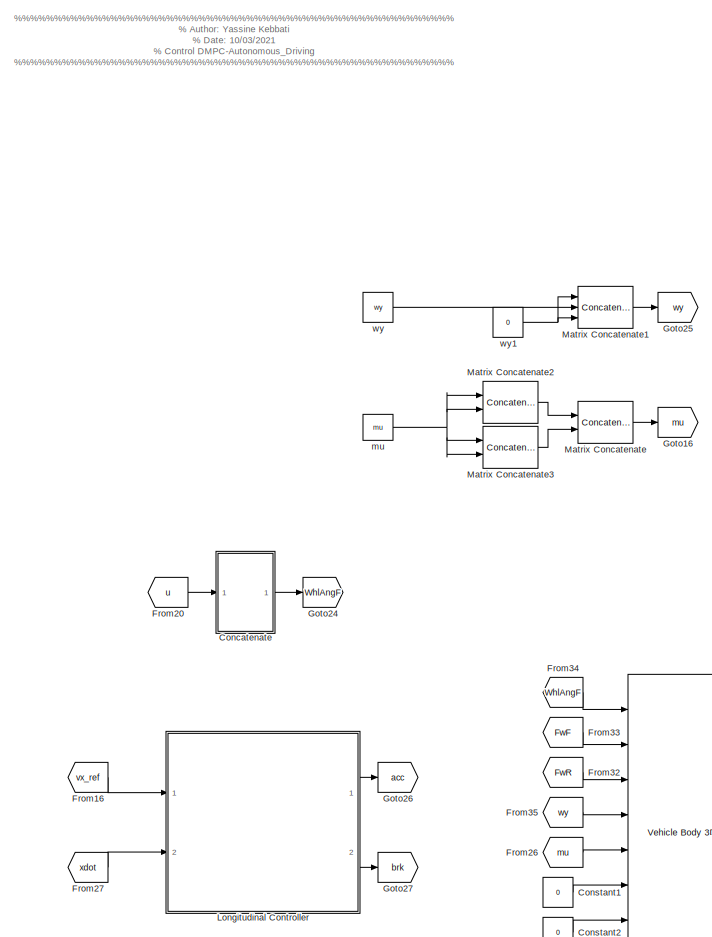
[diagram: root canvas - part 1/4, center side, full height]
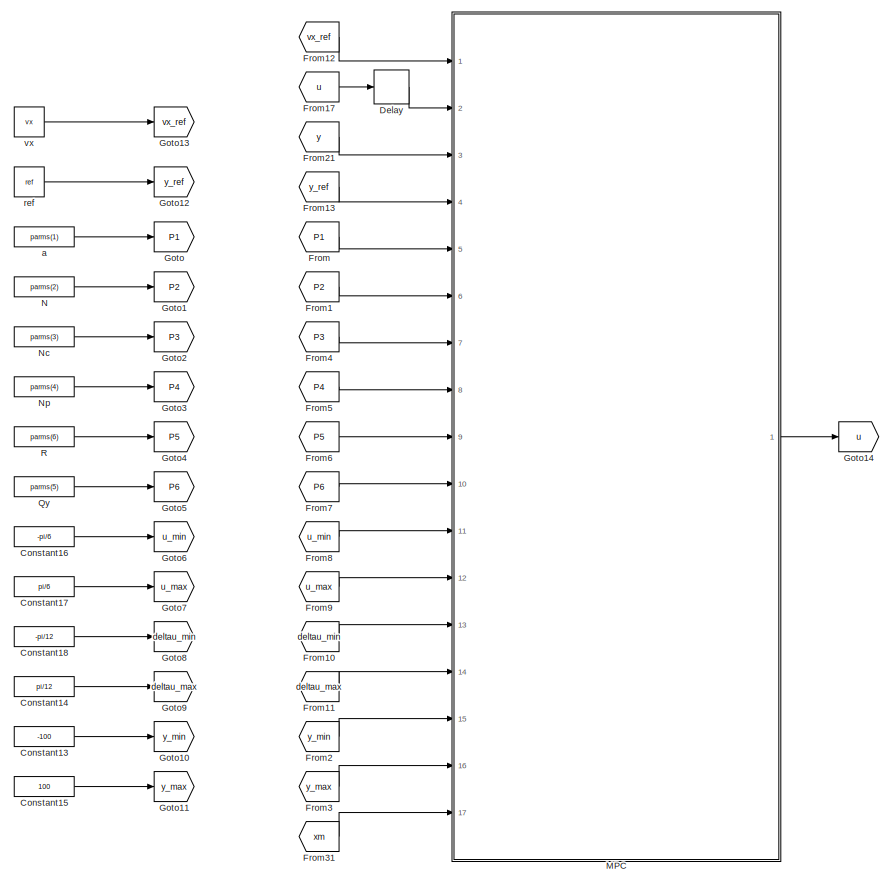
[diagram: root canvas - part 2/4, left side, full height]
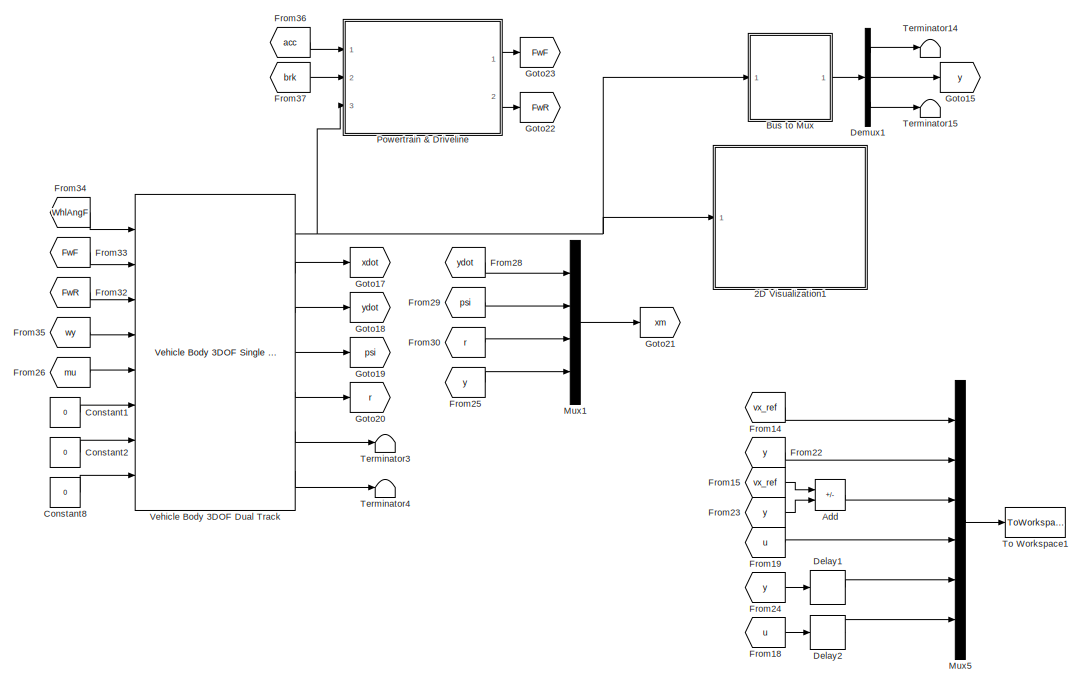
[diagram: root canvas - part 3/4, bottom center region]
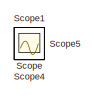
[diagram: root canvas - part 4/4, middle right region]
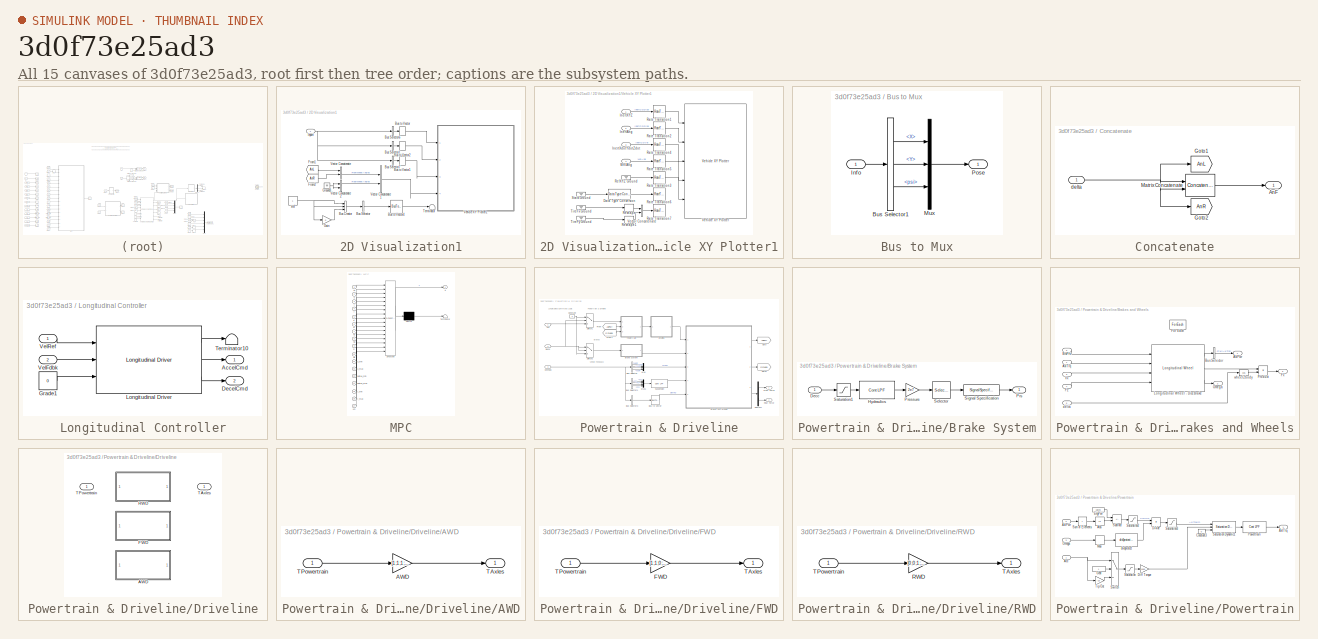
[diagram: thumbnail index - all 15 canvases of the model, root first then tree order]
MODEL slx_3d0f73e25ad3
KIND model
CONFIG AbsTol = auto
CONFIG EnableMultiTasking = off
CONFIG FixedStep = 0.01
CONFIG MaxStep = auto
CONFIG MinStep = auto
CONFIG PreLoadFcn = setUpPurePursuitCurveHighVel
CONFIG RelTol = 1e-3
CONFIG SampleTimeConstraint = Unconstrained
CONFIG Solver = VariableStepAuto
CONFIG SolverName = VariableStepAuto
CONFIG StartTime = 0.0
CONFIG StopTime = 6
WORKSPACE source: MAT-file member
WORKSPACE firstWarning = 0
BLOCK [SubSystem] 2D Visualization1
  Ports = [1]
BLOCK [BusCreator] 2D Visualization1/Bus Creator
  DisplayOption = bar
  InheritFromInputs = on
  Inputs = 3
  Ports = [3, 1]
BLOCK [BusSelector] 2D Visualization1/Bus Selector
  OutputAsBus = on
  OutputSignals = signal1,signal2,signal3
  Ports = [1, 1]
BLOCK [BusSelector] 2D Visualization1/Bus Selector1
  OutputAsBus = on
  OutputSignals = InertFrm.Cg.Ang.phi,InertFrm.Cg.Ang.theta,InertFrm.Cg.Ang.psi
  Ports = [1, 1]
BLOCK [BusSelector] 2D Visualization1/Bus Selector6
  OutputAsBus = on
  OutputSignals = InertFrm.Geom.Disp.X,InertFrm.Geom.Disp.Y,InertFrm.Geom.Disp.Z
  Ports = [1, 1]
BLOCK [BusSelector] 2D Visualization1/Bus Selector7
  OutputAsBus = on
  OutputSignals = InertFrm.Geom.Vel.Xdot,InertFrm.Geom.Vel.Ydot,InertFrm.Geom.Vel.Zdot
  Ports = [1, 1]
BLOCK [BusToVector] 2D Visualization1/Bus to Vector
BLOCK [BusToVector] 2D Visualization1/Bus to Vector1
BLOCK [BusToVector] 2D Visualization1/Bus to Vector2
BLOCK [BusToVector] 2D Visualization1/Bus to Vector4
BLOCK [From] 2D Visualization1/From1
  GotoTag = AnL
  TagVisibility = global
BLOCK [From] 2D Visualization1/From2
  GotoTag = AnR
  TagVisibility = global
BLOCK [Gain] 2D Visualization1/Gain
  Gain = 0
BLOCK [Ground] 2D Visualization1/Ground3
BLOCK [Inport] 2D Visualization1/Inport
BLOCK [Terminator] 2D Visualization1/Terminator
BLOCK [Concatenate] 2D Visualization1/Vector Concatenate
  Ports = [2, 1]
BLOCK [Concatenate] 2D Visualization1/Vector Concatenate1
  Ports = [2, 1]
BLOCK [Concatenate] 2D Visualization1/Vector Concatenate2
  Ports = [2, 1]
BLOCK [SubSystem] 2D Visualization1/Vehicle XY Plotter1
  Ports = [4]
BLOCK [DataTypeConversion] 2D Visualization1/Vehicle XY Plotter1/Data Type Conversion
  OutDataTypeStr = double
  RndMeth = Floor
  SaturateOnIntegerOverflow = off
BLOCK [Inport] 2D Visualization1/Vehicle XY Plotter1/InertAng
  Port = 2
BLOCK [Inport] 2D Visualization1/Vehicle XY Plotter1/InertXYZ
BLOCK [Inport] 2D Visualization1/Vehicle XY Plotter1/InertXdotYdotZdot
  Port = 3
BLOCK [RateTransition] 2D Visualization1/Vehicle XY Plotter1/Rate Transition1
  Deterministic = off
  OutPortSampleTime = pltDT
BLOCK [RateTransition] 2D Visualization1/Vehicle XY Plotter1/Rate Transition2
  Deterministic = off
  OutPortSampleTime = pltDT
BLOCK [RateTransition] 2D Visualization1/Vehicle XY Plotter1/Rate Transition3
  Deterministic = off
  OutPortSampleTime = pltDT
BLOCK [RateTransition] 2D Visualization1/Vehicle XY Plotter1/Rate Transition4
  Deterministic = off
  OutPortSampleTime = pltDT
BLOCK [RateTransition] 2D Visualization1/Vehicle XY Plotter1/Rate Transition5
  Deterministic = off
  OutPortSampleTime = pltDT
BLOCK [RateTransition] 2D Visualization1/Vehicle XY Plotter1/Rate Transition6
  Deterministic = off
  OutPortSampleTime = pltDT
BLOCK [RateTransition] 2D Visualization1/Vehicle XY Plotter1/Rate Transition7
  Deterministic = off
  OutPortSampleTime = pltDT
BLOCK [Ground] 2D Visualization1/Vehicle XY Plotter1/RefXYZ Ground
BLOCK [Reshape] 2D Visualization1/Vehicle XY Plotter1/Reshape
  OutputDimensionality = Row vector (2-D)
  Ports = [1, 1]
BLOCK [Reshape] 2D Visualization1/Vehicle XY Plotter1/Reshape1
  OutputDimensionality = Row vector (2-D)
  Ports = [1, 1]
BLOCK [Ground] 2D Visualization1/Vehicle XY Plotter1/Stats Ground
BLOCK [Ground] 2D Visualization1/Vehicle XY Plotter1/TireFx Ground
BLOCK [Ground] 2D Visualization1/Vehicle XY Plotter1/TireFy Ground
BLOCK [Concatenate] 2D Visualization1/Vehicle XY Plotter1/Vector Concatenate
  Mode = Multidimensional array
  Ports = [2, 1]
BLOCK [Reference] 2D Visualization1/Vehicle XY Plotter1/Vehicle XY Plotter  REF=vehdynlibviscommon/Vehicle XY Plotter
  Ports = [5]
  SourceBlock = vehdynlibviscommon/Vehicle XY Plotter
  SourceType = Vehicle XY Plotter
BLOCK [Inport] 2D Visualization1/Vehicle XY Plotter1/WhlAng
  Port = 4
BLOCK [Constant] 2D Visualization1/xref
BLOCK [Sum] Add
  IconShape = rectangular
  Inputs = +-
  Ports = [2, 1]
BLOCK [SubSystem] Bus to Mux
  Ports = [1, 1]
BLOCK [BusSelector] Bus to Mux/Bus Selector1
  OutputSignals = InertFrm.Cg.Disp.X,InertFrm.Cg.Disp.Y,InertFrm.Cg.Ang.psi
  Ports = [1, 3]
BLOCK [Inport] Bus to Mux/Info
BLOCK [Mux] Bus to Mux/Mux
  DisplayOption = bar
  Inputs = 3
  Ports = [3, 1]
BLOCK [Outport] Bus to Mux/Pose
BLOCK [SubSystem] Concatenate
  Ports = [1, 1]
BLOCK [Outport] Concatenate/AnF
  VectorParamsAs1DForOutWhenUnconnected = off
BLOCK [Goto] Concatenate/Goto1
  GotoTag = AnL
  TagVisibility = global
BLOCK [Goto] Concatenate/Goto2
  GotoTag = AnR
  TagVisibility = global
BLOCK [Concatenate] Concatenate/Matrix Concatenate
  Ports = [2, 1]
BLOCK [Inport] Concatenate/delta
BLOCK [Constant] Constant1
  Value = 0
BLOCK [Constant] Constant13
  Value = -100
BLOCK [Constant] Constant14
  Value = pi/12
BLOCK [Constant] Constant15
  Value = 100
BLOCK [Constant] Constant16
  Value = -pi/6
BLOCK [Constant] Constant17
  Value = pi/6
BLOCK [Constant] Constant18
  Value = -pi/12
BLOCK [Constant] Constant2
  Value = 0
BLOCK [Constant] Constant8
  Value = 0
BLOCK [Delay] Delay
  DelayLength = 1
  InputPortMap = u0
  Ports = [1, 1]
BLOCK [Delay] Delay1
  DelayLength = 1
  InputPortMap = u0
  Ports = [1, 1]
BLOCK [Delay] Delay2
  DelayLength = 1
  InputPortMap = u0
  Ports = [1, 1]
BLOCK [Demux] Demux1
  Outputs = 3
  Ports = [1, 3]
BLOCK [From] From
  CopyFcn = Lib_CopyFcn(gcb);
  Description = FromInternal
  GotoTag = P1
  PreDeleteFcn = Lib_PreDeleteFcn(gcb);
  Tag = Controls_Lib
  UserDataPersistent = on
BLOCK [From] From1
  CopyFcn = Lib_CopyFcn(gcb);
  Description = FromInternal
  GotoTag = P2
  PreDeleteFcn = Lib_PreDeleteFcn(gcb);
  Tag = Controls_Lib
  UserDataPersistent = on
BLOCK [From] From10
  CopyFcn = Lib_CopyFcn(gcb);
  Description = FromInternal
  GotoTag = deltau_min
  PreDeleteFcn = Lib_PreDeleteFcn(gcb);
  Tag = Controls_Lib
  UserDataPersistent = on
BLOCK [From] From11
  CopyFcn = Lib_CopyFcn(gcb);
  Description = FromInternal
  GotoTag = deltau_max
  PreDeleteFcn = Lib_PreDeleteFcn(gcb);
  Tag = Controls_Lib
  UserDataPersistent = on
BLOCK [From] From12
  CopyFcn = Lib_CopyFcn(gcb);
  Description = FromInternal
  GotoTag = vx_ref
  PreDeleteFcn = Lib_PreDeleteFcn(gcb);
  Tag = Controls_Lib
  UserDataPersistent = on
BLOCK [From] From13
  CopyFcn = Lib_CopyFcn(gcb);
  Description = FromInternal
  GotoTag = y_ref
  PreDeleteFcn = Lib_PreDeleteFcn(gcb);
  Tag = Controls_Lib
  UserDataPersistent = on
BLOCK [From] From14
  CopyFcn = Lib_CopyFcn(gcb);
  Description = FromInternal
  GotoTag = vx_ref
  PreDeleteFcn = Lib_PreDeleteFcn(gcb);
  Tag = Controls_Lib
  UserDataPersistent = on
BLOCK [From] From15
  CopyFcn = Lib_CopyFcn(gcb);
  Description = FromInternal
  GotoTag = vx_ref
  PreDeleteFcn = Lib_PreDeleteFcn(gcb);
  Tag = Controls_Lib
  UserDataPersistent = on
BLOCK [From] From16
  CopyFcn = Lib_CopyFcn(gcb);
  Description = FromInternal
  GotoTag = vx_ref
  PreDeleteFcn = Lib_PreDeleteFcn(gcb);
  Tag = Controls_Lib
  UserDataPersistent = on
BLOCK [From] From17
  CopyFcn = Lib_CopyFcn(gcb);
  Description = FromInternal
  GotoTag = u
  PreDeleteFcn = Lib_PreDeleteFcn(gcb);
  Tag = Controls_Lib
  UserDataPersistent = on
BLOCK [From] From18
  CopyFcn = Lib_CopyFcn(gcb);
  Description = FromInternal
  GotoTag = u
  PreDeleteFcn = Lib_PreDeleteFcn(gcb);
  Tag = Controls_Lib
  UserDataPersistent = on
BLOCK [From] From19
  CopyFcn = Lib_CopyFcn(gcb);
  Description = FromInternal
  GotoTag = u
  PreDeleteFcn = Lib_PreDeleteFcn(gcb);
  Tag = Controls_Lib
  UserDataPersistent = on
BLOCK [From] From2
  CopyFcn = Lib_CopyFcn(gcb);
  Description = FromInternal
  GotoTag = y_min
  PreDeleteFcn = Lib_PreDeleteFcn(gcb);
  Tag = Controls_Lib
  UserDataPersistent = on
BLOCK [From] From20
  CopyFcn = Lib_CopyFcn(gcb);
  Description = FromInternal
  GotoTag = u
  PreDeleteFcn = Lib_PreDeleteFcn(gcb);
  Tag = Controls_Lib
  UserDataPersistent = on
BLOCK [From] From21
  CopyFcn = Lib_CopyFcn(gcb);
  Description = FromInternal
  GotoTag = y
  PreDeleteFcn = Lib_PreDeleteFcn(gcb);
  Tag = Controls_Lib
  UserDataPersistent = on
BLOCK [From] From22
  CopyFcn = Lib_CopyFcn(gcb);
  Description = FromInternal
  GotoTag = y
  PreDeleteFcn = Lib_PreDeleteFcn(gcb);
  Tag = Controls_Lib
  UserDataPersistent = on
BLOCK [From] From23
  CopyFcn = Lib_CopyFcn(gcb);
  Description = FromInternal
  GotoTag = y
  PreDeleteFcn = Lib_PreDeleteFcn(gcb);
  Tag = Controls_Lib
  UserDataPersistent = on
BLOCK [From] From24
  CopyFcn = Lib_CopyFcn(gcb);
  Description = FromInternal
  GotoTag = y
  PreDeleteFcn = Lib_PreDeleteFcn(gcb);
  Tag = Controls_Lib
  UserDataPersistent = on
BLOCK [From] From25
  CopyFcn = Lib_CopyFcn(gcb);
  Description = FromInternal
  GotoTag = y
  PreDeleteFcn = Lib_PreDeleteFcn(gcb);
  Tag = Controls_Lib
  UserDataPersistent = on
BLOCK [From] From26
  CopyFcn = Lib_CopyFcn(gcb);
  Description = FromInternal
  GotoTag = mu
  PreDeleteFcn = Lib_PreDeleteFcn(gcb);
  Tag = Controls_Lib
  UserDataPersistent = on
BLOCK [From] From27
  CopyFcn = Lib_CopyFcn(gcb);
  Description = FromInternal
  GotoTag = xdot
  PreDeleteFcn = Lib_PreDeleteFcn(gcb);
  Tag = Controls_Lib
  UserDataPersistent = on
BLOCK [From] From28
  CopyFcn = Lib_CopyFcn(gcb);
  Description = FromInternal
  GotoTag = ydot
  PreDeleteFcn = Lib_PreDeleteFcn(gcb);
  Tag = Controls_Lib
  UserDataPersistent = on
BLOCK [From] From29
  CopyFcn = Lib_CopyFcn(gcb);
  Description = FromInternal
  GotoTag = psi
  PreDeleteFcn = Lib_PreDeleteFcn(gcb);
  Tag = Controls_Lib
  UserDataPersistent = on
BLOCK [From] From3
  CopyFcn = Lib_CopyFcn(gcb);
  Description = FromInternal
  GotoTag = y_max
  PreDeleteFcn = Lib_PreDeleteFcn(gcb);
  Tag = Controls_Lib
  UserDataPersistent = on
BLOCK [From] From30
  CopyFcn = Lib_CopyFcn(gcb);
  Description = FromInternal
  GotoTag = r
  PreDeleteFcn = Lib_PreDeleteFcn(gcb);
  Tag = Controls_Lib
  UserDataPersistent = on
BLOCK [From] From31
  CopyFcn = Lib_CopyFcn(gcb);
  Description = FromInternal
  GotoTag = xm
  PreDeleteFcn = Lib_PreDeleteFcn(gcb);
  Tag = Controls_Lib
  UserDataPersistent = on
BLOCK [From] From32
  CopyFcn = Lib_CopyFcn(gcb);
  Description = FromInternal
  GotoTag = FwR
  PreDeleteFcn = Lib_PreDeleteFcn(gcb);
  Tag = Controls_Lib
  UserDataPersistent = on
BLOCK [From] From33
  CopyFcn = Lib_CopyFcn(gcb);
  Description = FromInternal
  GotoTag = FwF
  PreDeleteFcn = Lib_PreDeleteFcn(gcb);
  Tag = Controls_Lib
  UserDataPersistent = on
BLOCK [From] From34
  CopyFcn = Lib_CopyFcn(gcb);
  Description = FromInternal
  GotoTag = WhlAngF
  PreDeleteFcn = Lib_PreDeleteFcn(gcb);
  Tag = Controls_Lib
  UserDataPersistent = on
BLOCK [From] From35
  CopyFcn = Lib_CopyFcn(gcb);
  Description = FromInternal
  GotoTag = wy
  PreDeleteFcn = Lib_PreDeleteFcn(gcb);
  Tag = Controls_Lib
  UserDataPersistent = on
BLOCK [From] From36
  CopyFcn = Lib_CopyFcn(gcb);
  Description = FromInternal
  GotoTag = acc
  PreDeleteFcn = Lib_PreDeleteFcn(gcb);
  Tag = Controls_Lib
  UserDataPersistent = on
BLOCK [From] From37
  CopyFcn = Lib_CopyFcn(gcb);
  Description = FromInternal
  GotoTag = brk
  PreDeleteFcn = Lib_PreDeleteFcn(gcb);
  Tag = Controls_Lib
  UserDataPersistent = on
BLOCK [From] From4
  CopyFcn = Lib_CopyFcn(gcb);
  Description = FromInternal
  GotoTag = P3
  PreDeleteFcn = Lib_PreDeleteFcn(gcb);
  Tag = Controls_Lib
  UserDataPersistent = on
BLOCK [From] From5
  CopyFcn = Lib_CopyFcn(gcb);
  Description = FromInternal
  GotoTag = P4
  PreDeleteFcn = Lib_PreDeleteFcn(gcb);
  Tag = Controls_Lib
  UserDataPersistent = on
BLOCK [From] From6
  CopyFcn = Lib_CopyFcn(gcb);
  Description = FromInternal
  GotoTag = P5
  PreDeleteFcn = Lib_PreDeleteFcn(gcb);
  Tag = Controls_Lib
  UserDataPersistent = on
BLOCK [From] From7
  CopyFcn = Lib_CopyFcn(gcb);
  Description = FromInternal
  GotoTag = P6
  PreDeleteFcn = Lib_PreDeleteFcn(gcb);
  Tag = Controls_Lib
  UserDataPersistent = on
BLOCK [From] From8
  CopyFcn = Lib_CopyFcn(gcb);
  Description = FromInternal
  GotoTag = u_min
  PreDeleteFcn = Lib_PreDeleteFcn(gcb);
  Tag = Controls_Lib
  UserDataPersistent = on
BLOCK [From] From9
  CopyFcn = Lib_CopyFcn(gcb);
  Description = FromInternal
  GotoTag = u_max
  PreDeleteFcn = Lib_PreDeleteFcn(gcb);
  Tag = Controls_Lib
  UserDataPersistent = on
BLOCK [Goto] Goto
  GotoTag = P1
BLOCK [Goto] Goto1
  GotoTag = P2
BLOCK [Goto] Goto10
  GotoTag = y_min
BLOCK [Goto] Goto11
  GotoTag = y_max
BLOCK [Goto] Goto12
  GotoTag = y_ref
BLOCK [Goto] Goto13
  GotoTag = vx_ref
BLOCK [Goto] Goto14
  GotoTag = u
BLOCK [Goto] Goto15
  GotoTag = y
BLOCK [Goto] Goto16
  GotoTag = mu
BLOCK [Goto] Goto17
  GotoTag = xdot
BLOCK [Goto] Goto18
  GotoTag = ydot
BLOCK [Goto] Goto19
  GotoTag = psi
BLOCK [Goto] Goto2
  GotoTag = P3
BLOCK [Goto] Goto20
  GotoTag = r
BLOCK [Goto] Goto21
  GotoTag = xm
BLOCK [Goto] Goto22
  GotoTag = FwR
BLOCK [Goto] Goto23
  GotoTag = FwF
BLOCK [Goto] Goto24
  CopyFcn = Lib_CopyFcn(gcb);
  Description = GotoInternal
  GotoTag = WhlAngF
  PreDeleteFcn = Lib_PreDeleteFcn(gcb);
  Tag = Controls_Lib
  UserDataPersistent = on
BLOCK [Goto] Goto25
  CopyFcn = Lib_CopyFcn(gcb);
  Description = GotoInternal
  GotoTag = wy
  PreDeleteFcn = Lib_PreDeleteFcn(gcb);
  Tag = Controls_Lib
  UserDataPersistent = on
BLOCK [Goto] Goto26
  CopyFcn = Lib_CopyFcn(gcb);
  Description = GotoInternal
  GotoTag = acc
  PreDeleteFcn = Lib_PreDeleteFcn(gcb);
  Tag = Controls_Lib
  UserDataPersistent = on
BLOCK [Goto] Goto27
  CopyFcn = Lib_CopyFcn(gcb);
  Description = GotoInternal
  GotoTag = brk
  PreDeleteFcn = Lib_PreDeleteFcn(gcb);
  Tag = Controls_Lib
  UserDataPersistent = on
BLOCK [Goto] Goto3
  GotoTag = P4
BLOCK [Goto] Goto4
  GotoTag = P5
BLOCK [Goto] Goto5
  GotoTag = P6
BLOCK [Goto] Goto6
  GotoTag = u_min
BLOCK [Goto] Goto7
  GotoTag = u_max
BLOCK [Goto] Goto8
  GotoTag = deltau_min
BLOCK [Goto] Goto9
  GotoTag = deltau_max
BLOCK [SubSystem] Longitudinal Controller
  Ports = [2, 2]
BLOCK [Outport] Longitudinal Controller/AccelCmd
BLOCK [Outport] Longitudinal Controller/DecelCmd
  Port = 2
BLOCK [Constant] Longitudinal Controller/Grade1
  Value = 0
BLOCK [Reference] Longitudinal Controller/Longitudinal Driver  REF=autolibshared/Longitudinal Driver
  Ports = [3, 3]
  SourceBlock = autolibshared/Longitudinal Driver
  SourceType = Longitudinal Driver
BLOCK [Terminator] Longitudinal Controller/Terminator10
BLOCK [Inport] Longitudinal Controller/VelFdbk
  Port = 2
BLOCK [Inport] Longitudinal Controller/VelRef
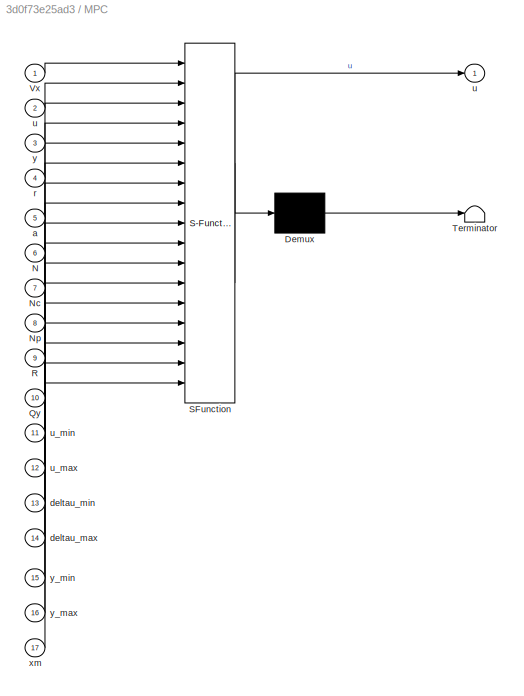
BLOCK [SubSystem] MPC
  ErrorFcn = Stateflow.Translate.translate
  PermitHierarchicalResolution = ExplicitOnly
  Ports = [17, 1]
  SFBlockType = MATLAB Function
  TreatAsAtomicUnit = on
BLOCK [Demux] MPC/ Demux 
  Outputs = 1
  Ports = [1, 1]
BLOCK [S-Function] MPC/ SFunction 
  EnableBusSupport = on
  FunctionName = sf_sfun
  PortCounts = [17 2]
  Ports = [17, 2]
  SFcnIsStateOwnerBlock = off
  SFunctionDeploymentMode = off
  Tag = Stateflow S-Function MPC1 2
BLOCK [Terminator] MPC/ Terminator 
BLOCK [Inport] MPC/N
  Port = 6
BLOCK [Inport] MPC/Nc
  Port = 7
BLOCK [Inport] MPC/Np
  Port = 8
BLOCK [Inport] MPC/Qy
  Port = 10
BLOCK [Inport] MPC/R
  Port = 9
BLOCK [Inport] MPC/Vx
BLOCK [Inport] MPC/a
  Port = 5
BLOCK [Inport] MPC/deltau_max
  Port = 14
BLOCK [Inport] MPC/deltau_min
  Port = 13
BLOCK [Inport] MPC/r
  Port = 4
BLOCK [Outport] MPC/u
BLOCK [Inport] MPC/u 
  Port = 2
BLOCK [Inport] MPC/u_max
  Port = 12
BLOCK [Inport] MPC/u_min
  Port = 11
BLOCK [Inport] MPC/xm
  Port = 17
BLOCK [Inport] MPC/y
  Port = 3
BLOCK [Inport] MPC/y_max
  Port = 16
BLOCK [Inport] MPC/y_min
  Port = 15
BLOCK [Concatenate] Matrix Concatenate
  ConcatenateDimension = 2
  Mode = Multidimensional array
  Ports = [2, 1]
BLOCK [Concatenate] Matrix Concatenate1
  ConcatenateDimension = 2
  Mode = Multidimensional array
  NumInputs = 3
  Ports = [3, 1]
BLOCK [Concatenate] Matrix Concatenate2
  ConcatenateDimension = 2
  Ports = [2, 1]
BLOCK [Concatenate] Matrix Concatenate3
  ConcatenateDimension = 2
  Ports = [2, 1]
BLOCK [Mux] Mux1
  DisplayOption = bar
  Ports = [4, 1]
BLOCK [Mux] Mux5
  DisplayOption = bar
  Inputs = 6
  Ports = [6, 1]
BLOCK [Constant] N
  Value = parms(2)
BLOCK [Constant] Nc
  Value = parms(3)
BLOCK [Constant] Np
  Value = parms(4)
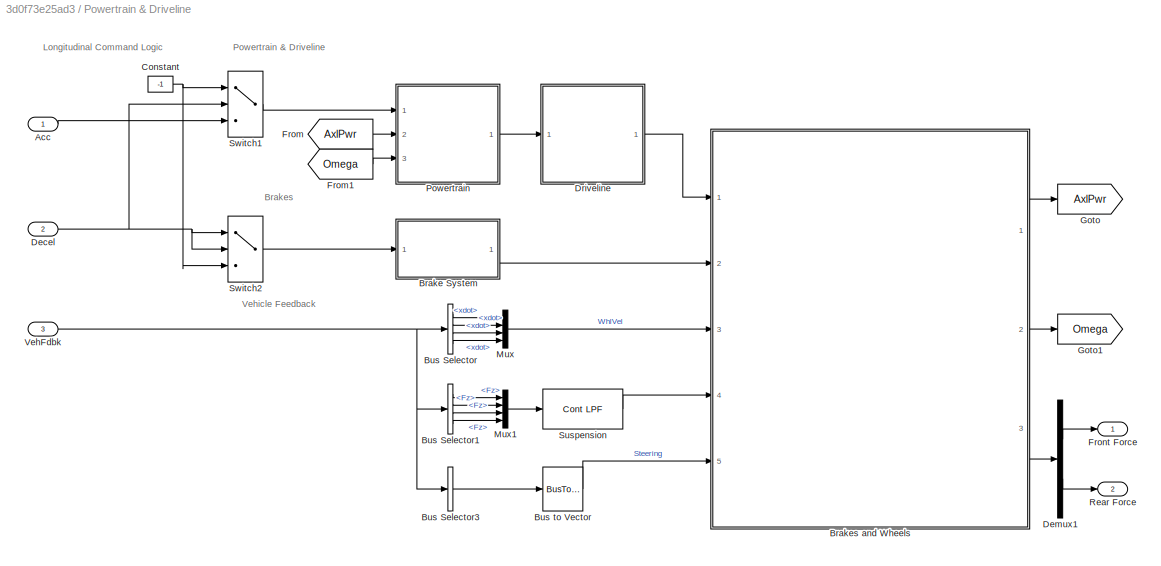
BLOCK [SubSystem] Powertrain & Driveline
  Ports = [3, 2]
BLOCK [Inport] Powertrain & Driveline/Acc
BLOCK [SubSystem] Powertrain & Driveline/Brake System
  Ports = [1, 1]
BLOCK [Inport] Powertrain & Driveline/Brake System/Decc
BLOCK [Reference] Powertrain & Driveline/Brake System/Hydraulics  REF=autolibutils/Cont LPF
  Ports = [1, 1]
  SourceBlock = autolibutils/Cont LPF
BLOCK [Gain] Powertrain & Driveline/Brake System/Pressure
  Gain = 2e7
BLOCK [Outport] Powertrain & Driveline/Brake System/Prs
  VectorParamsAs1DForOutWhenUnconnected = off
BLOCK [Saturate] Powertrain & Driveline/Brake System/Saturation1
  LowerLimit = 0
  UpperLimit = inf
  ZeroCross = off
BLOCK [Selector] Powertrain & Driveline/Brake System/Selector
  IndexOptions = Index vector (dialog)
  Indices = [1 1 1 1]
  InputPortWidth = 1
  OutputSizes = 1
  Ports = [1, 1]
BLOCK [SignalSpecification] Powertrain & Driveline/Brake System/Signal Specification
  Unit = Pa
BLOCK [SubSystem] Powertrain & Driveline/Brakes and Wheels
  Ports = [5, 3]
  TreatAsAtomicUnit = on
BLOCK [Outport] Powertrain & Driveline/Brakes and Wheels/AxlPwr
  ConcatenationDimension = 1
  VectorParamsAs1DForOutWhenUnconnected = off
BLOCK [Inport] Powertrain & Driveline/Brakes and Wheels/AxlTrq
  Partition = on
  PartitionDimension = 1
  PartitionOffset = 0
  PartitionWidth = 1
BLOCK [Inport] Powertrain & Driveline/Brakes and Wheels/BrkPrs
  Partition = on
  PartitionDimension = 1
  PartitionOffset = 0
  PartitionWidth = 1
  Port = 2
BLOCK [BusSelector] Powertrain & Driveline/Brakes and Wheels/Bus Selector
  OutputSignals = PwrInfo.PwrTrnsfrd.PwrAxlTrq
  Ports = [1, 1]
BLOCK [ForEach] Powertrain & Driveline/Brakes and Wheels/For Each
  DisableCoverage = on
  Ports = []
BLOCK [Outport] Powertrain & Driveline/Brakes and Wheels/Fx
  ConcatenationDimension = 1
  Port = 3
  VectorParamsAs1DForOutWhenUnconnected = off
BLOCK [Inport] Powertrain & Driveline/Brakes and Wheels/Fz
  Partition = on
  PartitionDimension = 1
  PartitionOffset = 0
  PartitionWidth = 1
  Port = 4
BLOCK [Reference] Powertrain & Driveline/Brakes and Wheels/Longitudinal Wheel - Disc Brake  REF=autolibshared/Longitudinal Wheel
  Ports = [4, 3]
  SourceBlock = autolibshared/Longitudinal Wheel
  SourceType = Longitudinal Wheel
BLOCK [Outport] Powertrain & Driveline/Brakes and Wheels/Omega
  ConcatenationDimension = 1
  Port = 2
  VectorParamsAs1DForOutWhenUnconnected = off
BLOCK [Product] Powertrain & Driveline/Brakes and Wheels/Product
  Ports = [2, 1]
BLOCK [Inport] Powertrain & Driveline/Brakes and Wheels/Vx
  Partition = on
  PartitionDimension = 1
  PartitionOffset = 0
  PartitionWidth = 1
  Port = 3
BLOCK [Inport] Powertrain & Driveline/Brakes and Wheels/delta
  Partition = on
  PartitionDimension = 1
  PartitionOffset = 0
  PartitionWidth = 1
  Port = 5
BLOCK [Trigonometry] Powertrain & Driveline/Brakes and Wheels/wheel2body
  Operator = cos
  Ports = [1, 1]
BLOCK [BusSelector] Powertrain & Driveline/Bus Selector
  OutputSignals = BdyFrm.FrntAxl.Lft.Vel.xdot,BdyFrm.FrntAxl.Rght.Vel.xdot,BdyFrm.RearAxl.Lft.Vel.xdot,BdyFrm.RearAxl.Rght.Vel.xdot
  Ports = [1, 4]
BLOCK [BusSelector] Powertrain & Driveline/Bus Selector1
  OutputSignals = BdyFrm.Forces.FrntAxl.Lft.Fz,BdyFrm.Forces.FrntAxl.Rght.Fz,BdyFrm.Forces.RearAxl.Lft.Fz,BdyFrm.Forces.RearAxl.Rght.Fz
  Ports = [1, 4]
BLOCK [BusSelector] Powertrain & Driveline/Bus Selector3
  OutputAsBus = on
  OutputSignals = BdyFrm.FrntAxl.Steer.WhlAngFL,BdyFrm.FrntAxl.Steer.WhlAngFR,BdyFrm.RearAxl.Steer.WhlAngRL,BdyFrm.RearAxl.Steer.WhlAngRR
  Ports = [1, 1]
BLOCK [BusToVector] Powertrain & Driveline/Bus to Vector
BLOCK [Constant] Powertrain & Driveline/Constant
  Value = -1
BLOCK [Inport] Powertrain & Driveline/Decel
  Port = 2
BLOCK [Demux] Powertrain & Driveline/Demux1
  Outputs = [2 2]
  Ports = [1, 2]
BLOCK [SubSystem] Powertrain & Driveline/Driveline
  OverrideUsingVariant = 0
  Ports = [1, 1]
  Variant = on
  VariantControl = Variant1
BLOCK [SubSystem] Powertrain & Driveline/Driveline/AWD
  Ports = [1, 1]
  VariantControl = 2
BLOCK [Gain] Powertrain & Driveline/Driveline/AWD/AWD
  Gain = [1;1;1;1]./2
BLOCK [Outport] Powertrain & Driveline/Driveline/AWD/TAxles
  VectorParamsAs1DForOutWhenUnconnected = off
BLOCK [Inport] Powertrain & Driveline/Driveline/AWD/TPowertrain
BLOCK [SubSystem] Powertrain & Driveline/Driveline/FWD
  Ports = [1, 1]
  VariantControl = 1
BLOCK [Gain] Powertrain & Driveline/Driveline/FWD/FWD
  Gain = [1;1;0;0]
BLOCK [Outport] Powertrain & Driveline/Driveline/FWD/TAxles
  VectorParamsAs1DForOutWhenUnconnected = off
BLOCK [Inport] Powertrain & Driveline/Driveline/FWD/TPowertrain
BLOCK [SubSystem] Powertrain & Driveline/Driveline/RWD
  Ports = [1, 1]
  VariantControl = 0
BLOCK [Gain] Powertrain & Driveline/Driveline/RWD/RWD
  Gain = [0;0;1;1]
BLOCK [Outport] Powertrain & Driveline/Driveline/RWD/TAxles
  VectorParamsAs1DForOutWhenUnconnected = off
BLOCK [Inport] Powertrain & Driveline/Driveline/RWD/TPowertrain
BLOCK [Outport] Powertrain & Driveline/Driveline/TAxles
  VectorParamsAs1DForOutWhenUnconnected = off
BLOCK [Inport] Powertrain & Driveline/Driveline/TPowertrain
BLOCK [From] Powertrain & Driveline/From
  GotoTag = AxlPwr
BLOCK [From] Powertrain & Driveline/From1
  GotoTag = Omega
BLOCK [Outport] Powertrain & Driveline/Front Force
  VectorParamsAs1DForOutWhenUnconnected = off
BLOCK [Goto] Powertrain & Driveline/Goto
  GotoTag = AxlPwr
BLOCK [Goto] Powertrain & Driveline/Goto1
  GotoTag = Omega
BLOCK [Mux] Powertrain & Driveline/Mux
  DisplayOption = bar
  Ports = [4, 1]
BLOCK [Mux] Powertrain & Driveline/Mux1
  DisplayOption = bar
  Ports = [4, 1]
BLOCK [SubSystem] Powertrain & Driveline/Powertrain
  Ports = [3, 1]
BLOCK [Abs] Powertrain & Driveline/Powertrain/Abs
  SaturateOnIntegerOverflow = off
  ZeroCross = off
BLOCK [Inport] Powertrain & Driveline/Powertrain/Acc
BLOCK [Inport] Powertrain & Driveline/Powertrain/AxlPwr
  Port = 2
BLOCK [Outport] Powertrain & Driveline/Powertrain/AxlTrq
  VectorParamsAs1DForOutWhenUnconnected = off
BLOCK [Constant] Powertrain & Driveline/Powertrain/Constant3
  Value = 0
BLOCK [Gain] Powertrain & Driveline/Powertrain/Diff Torque
  Gain = 1000
BLOCK [Product] Powertrain & Driveline/Powertrain/Divide
  Inputs = */
  Ports = [2, 1]
BLOCK [Constant] Powertrain & Driveline/Powertrain/EngPwr
  Value = 100e3
BLOCK [Constant] Powertrain & Driveline/Powertrain/Gear
  SampleTime = -1
BLOCK [MinMax] Powertrain & Driveline/Powertrain/Max
  Function = max
  Ports = [1, 1]
  ZeroCross = off
BLOCK [Inport] Powertrain & Driveline/Powertrain/Omega
  Port = 3
BLOCK [Reference] Powertrain & Driveline/Powertrain/Powertrain  REF=autolibutils/Cont LPF
  Ports = [1, 1]
  SourceBlock = autolibutils/Cont LPF
BLOCK [Saturate] Powertrain & Driveline/Powertrain/Saturation
  LowerLimit = 0
  UpperLimit = inf
  ZeroCross = off
BLOCK [Reference] Powertrain & Driveline/Powertrain/Saturation Dynamic1  REF=simulink/Discontinuities/Saturation
Dynamic
  Ports = [3, 1]
  SourceBlock = simulink/Discontinuities/Saturation\nDynamic
  SourceType = Saturation Dynamic
BLOCK [Saturate] Powertrain & Driveline/Powertrain/Saturation2
  LowerLimit = 100
  UpperLimit = inf
  ZeroCross = off
BLOCK [Saturate] Powertrain & Driveline/Powertrain/Saturation3
  LowerLimit = 0
  UpperLimit = 1000
  ZeroCross = off
BLOCK [Sum] Powertrain & Driveline/Powertrain/Subtract
  IconShape = rectangular
  Inputs = +-
  Ports = [2, 1]
BLOCK [Sum] Powertrain & Driveline/Powertrain/Sum of Elements
  IconShape = rectangular
  Inputs = +
  Ports = [1, 1]
BLOCK [Switch] Powertrain & Driveline/Powertrain/Switch
  InputSameDT = off
  SaturateOnIntegerOverflow = off
  ZeroCross = off
BLOCK [Gain] Powertrain & Driveline/Powertrain/Tip Out
  Gain = -10
BLOCK [Reference] Powertrain & Driveline/Powertrain/div0protect  REF=autolibutils/div0protect - poly
  Ports = [1, 1]
  SourceBlock = autolibutils/div0protect - poly
BLOCK [Outport] Powertrain & Driveline/Rear Force
  Port = 2
  VectorParamsAs1DForOutWhenUnconnected = off
BLOCK [Reference] Powertrain & Driveline/Suspension  REF=autolibutils/Cont LPF
  Ports = [1, 1]
  SourceBlock = autolibutils/Cont LPF
BLOCK [Switch] Powertrain & Driveline/Switch1
  Criteria = u2 > Threshold
  InputSameDT = off
  SaturateOnIntegerOverflow = off
BLOCK [Switch] Powertrain & Driveline/Switch2
  Criteria = u2 > Threshold
  InputSameDT = off
  SaturateOnIntegerOverflow = off
BLOCK [Inport] Powertrain & Driveline/VehFdbk
  Port = 3
BLOCK [Constant] Qy
  Value = parms(5)
BLOCK [Constant] R
  Value = parms(6)
BLOCK [Scope] Scope
  Floating = off
  IOType = viewer
  NumInputPorts = 1
  Ports = []
  ScopeSpecificationString = Simulink.scopes.TimeScopeBlockCfg('CurrentConfiguration', extmgr.ConfigurationSet(extmgr.Configuration('Core','General UI',true),extmgr.Configuration('Core','Source UI',true),extmgr.Configuration('Sources','WiredSimulink',true),extmgr.Configuration('Visuals','Time Domain',true,'SerializedDisplays',{struct('MinYLimReal','-0.82942','MaxYLimReal','5.64771','YLabelReal','','MinYLimMag','0.00000','MaxY...<+1345ch>
BLOCK [Scope] Scope1
  Floating = off
  IOType = viewer
  NumInputPorts = 1
  Ports = []
  ScopeSpecificationString = Simulink.scopes.TimeScopeBlockCfg('CurrentConfiguration', extmgr.ConfigurationSet(extmgr.Configuration('Core','General UI',true),extmgr.Configuration('Core','Source UI',true),extmgr.Configuration('Sources','WiredSimulink',true,'DataLoggingVariableName','ScopeData1'),extmgr.Configuration('Visuals','Time Domain',true,'SerializedDisplays',{struct('MinYLimReal','-0.24179','MaxYLimReal','0.3591','YLabe...<+1384ch>
BLOCK [Scope] Scope4
  Floating = off
  IOType = viewer
  NumInputPorts = 1
  Ports = []
  ScopeSpecificationString = Simulink.scopes.TimeScopeBlockCfg('CurrentConfiguration', extmgr.ConfigurationSet(extmgr.Configuration('Core','General UI',true),extmgr.Configuration('Core','Source UI',true),extmgr.Configuration('Sources','WiredSimulink',true,'DataLoggingVariableName','ScopeData1'),extmgr.Configuration('Visuals','Time Domain',true,'SerializedDisplays',{struct('MinYLimReal','-0.125','MaxYLimReal','1.125','YLabelRe...<+1372ch>
BLOCK [Scope] Scope5
  Floating = off
  IOType = viewer
  NumInputPorts = 1
  Ports = []
  ScopeSpecificationString = Simulink.scopes.TimeScopeBlockCfg('CurrentConfiguration', extmgr.ConfigurationSet(extmgr.Configuration('Core','General UI',true),extmgr.Configuration('Core','Source UI',true),extmgr.Configuration('Sources','WiredSimulink',true,'DataLoggingVariableName','ScopeData2'),extmgr.Configuration('Visuals','Time Domain',true,'SerializedDisplays',{struct('MinYLimReal','-0.01452','MaxYLimReal','0.13068','YLab...<+1414ch>
BLOCK [Terminator] Terminator14
BLOCK [Terminator] Terminator15
BLOCK [Terminator] Terminator3
BLOCK [Terminator] Terminator4
BLOCK [ToWorkspace] To Workspace1
  FixptAsFi = on
  MaxDataPoints = inf
  Ports = [1]
  SampleTime = -1
  SaveFormat = Timeseries
  VariableName = Data
BLOCK [Reference] Vehicle Body 3DOF Dual Track  REF=autolibshared/Vehicle Body 3DOF Single Track
  Ports = [8, 7]
  SourceBlock = autolibshared/Vehicle Body 3DOF Single Track
  SourceType = Vehicle Body 3DOF Lateral
BLOCK [Constant] a
  Value = parms(1)
BLOCK [Constant] mu
  Value = mu
BLOCK [Constant] ref
  Value = ref
BLOCK [Constant] vx
  Value = vx
BLOCK [Constant] wy
  Value = wy
BLOCK [Constant] wy1
  Commented = on
  Value = 0
ANNOTATION (root): %%%%%%%%%%%%%%%%%%%%%%%%%%%%%%%%%%%%%%%%%%%%%%%%%%%%%%% % Author: Yassine Kebbati % Date: 10/03/2021 % Control DMPC-Autonomous_Driving %%%%%%%%%%%%%%%%%%%%%%%%%%%%%%%%%%%%%%%%%%%%%%%%%%%%%%%
ANNOTATION Powertrain & Driveline: Brakes
ANNOTATION Powertrain & Driveline: Longitudinal Command Logic
ANNOTATION Powertrain & Driveline: Powertrain & Driveline
ANNOTATION Powertrain & Driveline: Vehicle Feedback
LINE 2D Visualization1/Bus Creator:1 -> 2D Visualization1/Bus Selector:1
LINE 2D Visualization1/Bus Selector1:1 -> 2D Visualization1/Bus to Vector2:1
LINE 2D Visualization1/Bus Selector6:1 -> 2D Visualization1/Bus to Vector:1
LINE 2D Visualization1/Bus Selector7:1 -> 2D Visualization1/Bus to Vector1:1
LINE 2D Visualization1/Bus Selector:1 -> 2D Visualization1/Bus to Vector4:1
LINE 2D Visualization1/Bus to Vector1:1 -> 2D Visualization1/Vehicle XY Plotter1:3
LINE 2D Visualization1/Bus to Vector2:1 -> 2D Visualization1/Vehicle XY Plotter1:2
LINE 2D Visualization1/Bus to Vector4:1 -> 2D Visualization1/Terminator:1
LINE 2D Visualization1/Bus to Vector:1 -> 2D Visualization1/Vehicle XY Plotter1:1
LINE 2D Visualization1/From1:1 -> 2D Visualization1/Vector Concatenate:1
LINE 2D Visualization1/From2:1 -> 2D Visualization1/Vector Concatenate:2
LINE 2D Visualization1/Gain:1 -> 2D Visualization1/Bus Creator:3
NET 2D Visualization1/Ground3:1 -> 2D Visualization1/Vector Concatenate2:1, 2D Visualization1/Vector Concatenate2:2
NET 2D Visualization1/Inport:1 -> 2D Visualization1/Bus Selector1:1, 2D Visualization1/Bus Selector6:1, 2D Visualization1/Bus Selector7:1
LINE 2D Visualization1/Vector Concatenate1:1 -> 2D Visualization1/Vehicle XY Plotter1:4
LINE 2D Visualization1/Vector Concatenate2:1 -> 2D Visualization1/Vector Concatenate1:2
LINE 2D Visualization1/Vector Concatenate:1 -> 2D Visualization1/Vector Concatenate1:1
LINE 2D Visualization1/Vehicle XY Plotter1/Data Type Conversion:1 -> 2D Visualization1/Vehicle XY Plotter1/Rate Transition6:1
LINE 2D Visualization1/Vehicle XY Plotter1/InertAng:1 -> 2D Visualization1/Vehicle XY Plotter1/Rate Transition2:1
LINE 2D Visualization1/Vehicle XY Plotter1/InertXYZ:1 -> 2D Visualization1/Vehicle XY Plotter1/Rate Transition1:1
LINE 2D Visualization1/Vehicle XY Plotter1/InertXdotYdotZdot:1 -> 2D Visualization1/Vehicle XY Plotter1/Rate Transition4:1
LINE 2D Visualization1/Vehicle XY Plotter1/Rate Transition1:1 -> 2D Visualization1/Vehicle XY Plotter1/Vehicle XY Plotter:1
LINE 2D Visualization1/Vehicle XY Plotter1/Rate Transition2:1 -> 2D Visualization1/Vehicle XY Plotter1/Vehicle XY Plotter:2
LINE 2D Visualization1/Vehicle XY Plotter1/Rate Transition3:1 -> 2D Visualization1/Vehicle XY Plotter1/Vehicle XY Plotter:5
LINE 2D Visualization1/Vehicle XY Plotter1/Rate Transition4:1 -> 2D Visualization1/Vehicle XY Plotter1/Vehicle XY Plotter:3
LINE 2D Visualization1/Vehicle XY Plotter1/Rate Transition5:1 -> 2D Visualization1/Vehicle XY Plotter1/Vehicle XY Plotter:4
LINE 2D Visualization1/Vehicle XY Plotter1/RefXYZ Ground:1 -> 2D Visualization1/Vehicle XY Plotter1/Rate Transition3:1
LINE 2D Visualization1/Vehicle XY Plotter1/Reshape1:1 -> 2D Visualization1/Vehicle XY Plotter1/Vector Concatenate:2
LINE 2D Visualization1/Vehicle XY Plotter1/Reshape:1 -> 2D Visualization1/Vehicle XY Plotter1/Vector Concatenate:1
LINE 2D Visualization1/Vehicle XY Plotter1/Stats Ground:1 -> 2D Visualization1/Vehicle XY Plotter1/Data Type Conversion:1
LINE 2D Visualization1/Vehicle XY Plotter1/TireFx Ground:1 -> 2D Visualization1/Vehicle XY Plotter1/Reshape:1
LINE 2D Visualization1/Vehicle XY Plotter1/TireFy Ground:1 -> 2D Visualization1/Vehicle XY Plotter1/Reshape1:1
LINE 2D Visualization1/Vehicle XY Plotter1/Vector Concatenate:1 -> 2D Visualization1/Vehicle XY Plotter1/Rate Transition7:1
LINE 2D Visualization1/Vehicle XY Plotter1/WhlAng:1 -> 2D Visualization1/Vehicle XY Plotter1/Rate Transition5:1
NET 2D Visualization1/xref:1 -> 2D Visualization1/Bus Creator:1, 2D Visualization1/Bus Creator:2, 2D Visualization1/Gain:1
LINE Add:1 -> Mux5:3
LINE Bus to Mux/Bus Selector1:1 -> Bus to Mux/Mux:1
LINE Bus to Mux/Bus Selector1:2 -> Bus to Mux/Mux:2
LINE Bus to Mux/Bus Selector1:3 -> Bus to Mux/Mux:3
LINE Bus to Mux/Info:1 -> Bus to Mux/Bus Selector1:1
LINE Bus to Mux/Mux:1 -> Bus to Mux/Pose:1
LINE Bus to Mux:1 -> Demux1:1
LINE Concatenate/Matrix Concatenate:1 -> Concatenate/AnF:1
NET Concatenate/delta:1 -> Concatenate/Goto1:1, Concatenate/Goto2:1, Concatenate/Matrix Concatenate:1, Concatenate/Matrix Concatenate:2
LINE Concatenate:1 -> Goto24:1
LINE Constant13:1 -> Goto10:1
LINE Constant14:1 -> Goto9:1
LINE Constant15:1 -> Goto11:1
LINE Constant16:1 -> Goto6:1
LINE Constant17:1 -> Goto7:1
LINE Constant18:1 -> Goto8:1
LINE Constant1:1 -> Vehicle Body 3DOF Dual Track:6
LINE Constant2:1 -> Vehicle Body 3DOF Dual Track:7
LINE Constant8:1 -> Vehicle Body 3DOF Dual Track:8
LINE Delay1:1 -> Mux5:5
LINE Delay2:1 -> Mux5:6
LINE Delay:1 -> MPC:2
LINE Demux1:1 -> Terminator14:1
LINE Demux1:2 -> Goto15:1
LINE Demux1:3 -> Terminator15:1
LINE From10:1 -> MPC:13
LINE From11:1 -> MPC:14
LINE From12:1 -> MPC:1
LINE From13:1 -> MPC:4
LINE From14:1 -> Mux5:1
LINE From15:1 -> Add:1
LINE From16:1 -> Longitudinal Controller:1
LINE From17:1 -> Delay:1
LINE From18:1 -> Delay2:1
LINE From19:1 -> Mux5:4
LINE From1:1 -> MPC:6
LINE From20:1 -> Concatenate:1
LINE From21:1 -> MPC:3
LINE From22:1 -> Mux5:2
LINE From23:1 -> Add:2
LINE From24:1 -> Delay1:1
LINE From25:1 -> Mux1:4
LINE From26:1 -> Vehicle Body 3DOF Dual Track:5
LINE From27:1 -> Longitudinal Controller:2
LINE From28:1 -> Mux1:1
LINE From29:1 -> Mux1:2
LINE From2:1 -> MPC:15
LINE From30:1 -> Mux1:3
LINE From31:1 -> MPC:17
LINE From32:1 -> Vehicle Body 3DOF Dual Track:3
LINE From33:1 -> Vehicle Body 3DOF Dual Track:2
LINE From34:1 -> Vehicle Body 3DOF Dual Track:1
LINE From35:1 -> Vehicle Body 3DOF Dual Track:4
LINE From36:1 -> Powertrain & Driveline:1
LINE From37:1 -> Powertrain & Driveline:2
LINE From3:1 -> MPC:16
LINE From4:1 -> MPC:7
LINE From5:1 -> MPC:8
LINE From6:1 -> MPC:9
LINE From7:1 -> MPC:10
LINE From8:1 -> MPC:11
LINE From9:1 -> MPC:12
LINE From:1 -> MPC:5
LINE Longitudinal Controller/Grade1:1 -> Longitudinal Controller/Longitudinal Driver:3
LINE Longitudinal Controller/Longitudinal Driver:1 -> Longitudinal Controller/Terminator10:1
LINE Longitudinal Controller/Longitudinal Driver:2 -> Longitudinal Controller/AccelCmd:1
LINE Longitudinal Controller/Longitudinal Driver:3 -> Longitudinal Controller/DecelCmd:1
LINE Longitudinal Controller/VelFdbk:1 -> Longitudinal Controller/Longitudinal Driver:2
LINE Longitudinal Controller/VelRef:1 -> Longitudinal Controller/Longitudinal Driver:1
LINE Longitudinal Controller:1 -> Goto26:1
LINE Longitudinal Controller:2 -> Goto27:1
LINE MPC:1 -> Goto14:1
LINE Matrix Concatenate1:1 -> Goto25:1
LINE Matrix Concatenate2:1 -> Matrix Concatenate:1
LINE Matrix Concatenate3:1 -> Matrix Concatenate:2
LINE Matrix Concatenate:1 -> Goto16:1
LINE Mux1:1 -> Goto21:1
LINE Mux5:1 -> To Workspace1:1
LINE N:1 -> Goto1:1
LINE Nc:1 -> Goto2:1
LINE Np:1 -> Goto3:1
LINE Powertrain & Driveline/Acc:1 -> Powertrain & Driveline/Switch1:3
LINE Powertrain & Driveline/Brake System/Decc:1 -> Powertrain & Driveline/Brake System/Saturation1:1
LINE Powertrain & Driveline/Brake System/Hydraulics:1 -> Powertrain & Driveline/Brake System/Pressure:1
LINE Powertrain & Driveline/Brake System/Pressure:1 -> Powertrain & Driveline/Brake System/Selector:1
LINE Powertrain & Driveline/Brake System/Saturation1:1 -> Powertrain & Driveline/Brake System/Hydraulics:1
LINE Powertrain & Driveline/Brake System/Selector:1 -> Powertrain & Driveline/Brake System/Signal Specification:1
LINE Powertrain & Driveline/Brake System/Signal Specification:1 -> Powertrain & Driveline/Brake System/Prs:1
LINE Powertrain & Driveline/Brake System:1 -> Powertrain & Driveline/Brakes and Wheels:2
LINE Powertrain & Driveline/Brakes and Wheels/AxlTrq:1 -> Powertrain & Driveline/Brakes and Wheels/Longitudinal Wheel - Disc Brake:2
LINE Powertrain & Driveline/Brakes and Wheels/BrkPrs:1 -> Powertrain & Driveline/Brakes and Wheels/Longitudinal Wheel - Disc Brake:1
LINE Powertrain & Driveline/Brakes and Wheels/Bus Selector:1 -> Powertrain & Driveline/Brakes and Wheels/AxlPwr:1
LINE Powertrain & Driveline/Brakes and Wheels/Fz:1 -> Powertrain & Driveline/Brakes and Wheels/Longitudinal Wheel - Disc Brake:4
LINE Powertrain & Driveline/Brakes and Wheels/Longitudinal Wheel - Disc Brake:1 -> Powertrain & Driveline/Brakes and Wheels/Bus Selector:1
LINE Powertrain & Driveline/Brakes and Wheels/Longitudinal Wheel - Disc Brake:2 -> Powertrain & Driveline/Brakes and Wheels/Product:1
LINE Powertrain & Driveline/Brakes and Wheels/Longitudinal Wheel - Disc Brake:3 -> Powertrain & Driveline/Brakes and Wheels/Omega:1
LINE Powertrain & Driveline/Brakes and Wheels/Product:1 -> Powertrain & Driveline/Brakes and Wheels/Fx:1
LINE Powertrain & Driveline/Brakes and Wheels/Vx:1 -> Powertrain & Driveline/Brakes and Wheels/Longitudinal Wheel - Disc Brake:3
LINE Powertrain & Driveline/Brakes and Wheels/delta:1 -> Powertrain & Driveline/Brakes and Wheels/wheel2body:1
LINE Powertrain & Driveline/Brakes and Wheels/wheel2body:1 -> Powertrain & Driveline/Brakes and Wheels/Product:2
LINE Powertrain & Driveline/Brakes and Wheels:1 -> Powertrain & Driveline/Goto:1
LINE Powertrain & Driveline/Brakes and Wheels:2 -> Powertrain & Driveline/Goto1:1
LINE Powertrain & Driveline/Brakes and Wheels:3 -> Powertrain & Driveline/Demux1:1
LINE Powertrain & Driveline/Bus Selector1:1 -> Powertrain & Driveline/Mux1:1
LINE Powertrain & Driveline/Bus Selector1:2 -> Powertrain & Driveline/Mux1:2
LINE Powertrain & Driveline/Bus Selector1:3 -> Powertrain & Driveline/Mux1:3
LINE Powertrain & Driveline/Bus Selector1:4 -> Powertrain & Driveline/Mux1:4
LINE Powertrain & Driveline/Bus Selector3:1 -> Powertrain & Driveline/Bus to Vector:1
LINE Powertrain & Driveline/Bus Selector:1 -> Powertrain & Driveline/Mux:1
LINE Powertrain & Driveline/Bus Selector:2 -> Powertrain & Driveline/Mux:2
LINE Powertrain & Driveline/Bus Selector:3 -> Powertrain & Driveline/Mux:3
LINE Powertrain & Driveline/Bus Selector:4 -> Powertrain & Driveline/Mux:4
LINE Powertrain & Driveline/Bus to Vector:1 -> Powertrain & Driveline/Brakes and Wheels:5
NET Powertrain & Driveline/Constant:1 -> Powertrain & Driveline/Switch1:1, Powertrain & Driveline/Switch2:3
NET Powertrain & Driveline/Decel:1 -> Powertrain & Driveline/Switch1:2, Powertrain & Driveline/Switch2:1, Powertrain & Driveline/Switch2:2
LINE Powertrain & Driveline/Demux1:1 -> Powertrain & Driveline/Front Force:1
LINE Powertrain & Driveline/Demux1:2 -> Powertrain & Driveline/Rear Force:1
LINE Powertrain & Driveline/Driveline/AWD/AWD:1 -> Powertrain & Driveline/Driveline/AWD/TAxles:1
LINE Powertrain & Driveline/Driveline/AWD/TPowertrain:1 -> Powertrain & Driveline/Driveline/AWD/AWD:1
LINE Powertrain & Driveline/Driveline/FWD/FWD:1 -> Powertrain & Driveline/Driveline/FWD/TAxles:1
LINE Powertrain & Driveline/Driveline/FWD/TPowertrain:1 -> Powertrain & Driveline/Driveline/FWD/FWD:1
LINE Powertrain & Driveline/Driveline/RWD/RWD:1 -> Powertrain & Driveline/Driveline/RWD/TAxles:1
LINE Powertrain & Driveline/Driveline/RWD/TPowertrain:1 -> Powertrain & Driveline/Driveline/RWD/RWD:1
LINE Powertrain & Driveline/Driveline:1 -> Powertrain & Driveline/Brakes and Wheels:1
LINE Powertrain & Driveline/From1:1 -> Powertrain & Driveline/Powertrain:3
LINE Powertrain & Driveline/From:1 -> Powertrain & Driveline/Powertrain:2
LINE Powertrain & Driveline/Mux1:1 -> Powertrain & Driveline/Suspension:1
LINE Powertrain & Driveline/Mux:1 -> Powertrain & Driveline/Brakes and Wheels:3
LINE Powertrain & Driveline/Powertrain/Abs:1 -> Powertrain & Driveline/Powertrain/Subtract:2
NET Powertrain & Driveline/Powertrain/Acc:1 -> Powertrain & Driveline/Powertrain/Switch:1, Powertrain & Driveline/Powertrain/Tip Out:1
LINE Powertrain & Driveline/Powertrain/AxlPwr:1 -> Powertrain & Driveline/Powertrain/Sum of Elements:1
LINE Powertrain & Driveline/Powertrain/Constant3:1 -> Powertrain & Driveline/Powertrain/Saturation Dynamic1:3
LINE Powertrain & Driveline/Powertrain/Diff Torque:1 -> Powertrain & Driveline/Powertrain/Saturation Dynamic1:2
LINE Powertrain & Driveline/Powertrain/Divide:1 -> Powertrain & Driveline/Powertrain/Saturation3:1
LINE Powertrain & Driveline/Powertrain/EngPwr:1 -> Powertrain & Driveline/Powertrain/Subtract:1
LINE Powertrain & Driveline/Powertrain/Gear:1 -> Powertrain & Driveline/Powertrain/Switch:2
LINE Powertrain & Driveline/Powertrain/Max:1 -> Powertrain & Driveline/Powertrain/div0protect:1
LINE Powertrain & Driveline/Powertrain/Omega:1 -> Powertrain & Driveline/Powertrain/Max:1
LINE Powertrain & Driveline/Powertrain/Powertrain:1 -> Powertrain & Driveline/Powertrain/AxlTrq:1
LINE Powertrain & Driveline/Powertrain/Saturation Dynamic1:1 -> Powertrain & Driveline/Powertrain/Powertrain:1
LINE Powertrain & Driveline/Powertrain/Saturation2:1 -> Powertrain & Driveline/Powertrain/Divide:1
LINE Powertrain & Driveline/Powertrain/Saturation3:1 -> Powertrain & Driveline/Powertrain/Saturation Dynamic1:1
LINE Powertrain & Driveline/Powertrain/Saturation:1 -> Powertrain & Driveline/Powertrain/Diff Torque:1
LINE Powertrain & Driveline/Powertrain/Subtract:1 -> Powertrain & Driveline/Powertrain/Saturation2:1
LINE Powertrain & Driveline/Powertrain/Sum of Elements:1 -> Powertrain & Driveline/Powertrain/Abs:1
LINE Powertrain & Driveline/Powertrain/Switch:1 -> Powertrain & Driveline/Powertrain/Saturation:1
LINE Powertrain & Driveline/Powertrain/Tip Out:1 -> Powertrain & Driveline/Powertrain/Switch:3
LINE Powertrain & Driveline/Powertrain/div0protect:1 -> Powertrain & Driveline/Powertrain/Divide:2
LINE Powertrain & Driveline/Powertrain:1 -> Powertrain & Driveline/Driveline:1
LINE Powertrain & Driveline/Suspension:1 -> Powertrain & Driveline/Brakes and Wheels:4
LINE Powertrain & Driveline/Switch1:1 -> Powertrain & Driveline/Powertrain:1
LINE Powertrain & Driveline/Switch2:1 -> Powertrain & Driveline/Brake System:1
NET Powertrain & Driveline/VehFdbk:1 -> Powertrain & Driveline/Bus Selector1:1, Powertrain & Driveline/Bus Selector3:1, Powertrain & Driveline/Bus Selector:1
LINE Powertrain & Driveline:1 -> Goto23:1
LINE Powertrain & Driveline:2 -> Goto22:1
LINE Qy:1 -> Goto5:1
LINE R:1 -> Goto4:1
NET Vehicle Body 3DOF Dual Track:1 -> 2D Visualization1:1, Bus to Mux:1, Powertrain & Driveline:3
LINE Vehicle Body 3DOF Dual Track:2 -> Goto17:1
LINE Vehicle Body 3DOF Dual Track:3 -> Goto18:1
LINE Vehicle Body 3DOF Dual Track:4 -> Goto19:1
LINE Vehicle Body 3DOF Dual Track:5 -> Goto20:1
LINE Vehicle Body 3DOF Dual Track:6 -> Terminator3:1
LINE Vehicle Body 3DOF Dual Track:7 -> Terminator4:1
LINE a:1 -> Goto:1
NET mu:1 -> Matrix Concatenate2:1, Matrix Concatenate2:2, Matrix Concatenate3:1, Matrix Concatenate3:2
LINE ref:1 -> Goto12:1
LINE vx:1 -> Goto13:1
NET wy1:1 -> Matrix Concatenate1:1, Matrix Concatenate1:3
LINE wy:1 -> Matrix Concatenate1:2
note: NET lines group one-source signal fan-out (src -> all destinations, sorted); 1:1 wires keep LINE
CHART MPC states=1 transitions=1
  STATE_LABEL 'eML_blk_kernel()'
  STATE_LABEL "SCRIPT:\nfunction u = fcn(Vx, u,y,r,a,N,Nc,Np,R,Qy,u_min,u_max,deltau_min,deltau_max,y_min,y_max,xm)\n\ntic;\n\ncoder.extrinsic('c2dm')\n%coder.extrinsic(function)\n\n%load('new_trajectory.mat')\n\n\n% Model identification\npersistent m,\nif isempty(m)\n  m = 1575;\nend\npersistent Iz,\nif isempty(Iz)\n  Iz = 2875;\nend\npersistent lr,\nif isempty(lr)\n  lr = 1.6;\nend\npersistent lf,\nif isempty(lf)\n  lf = 1.2;\nend\npersi...<+1962ch>"
